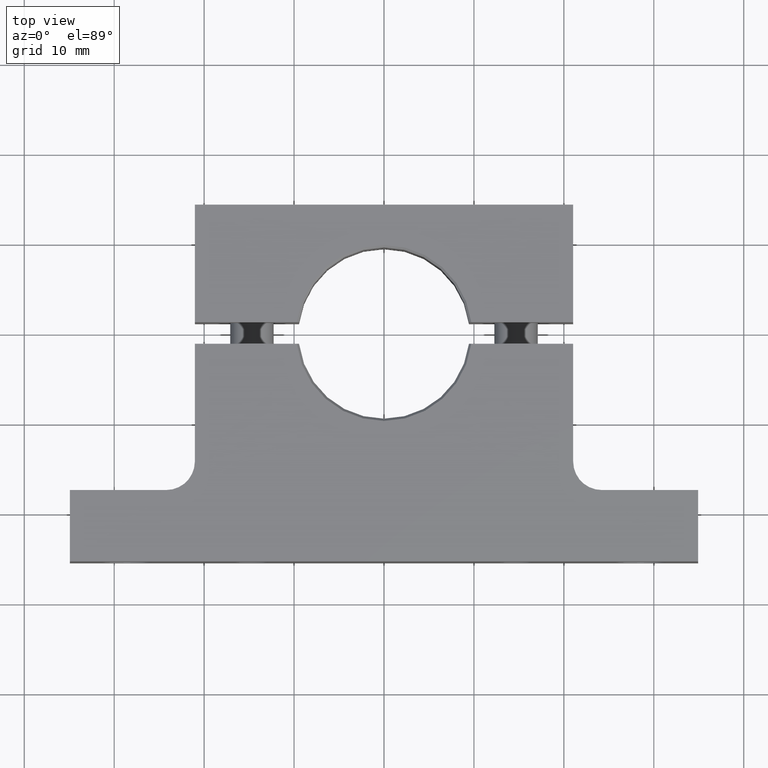
[diagram: clean part render]
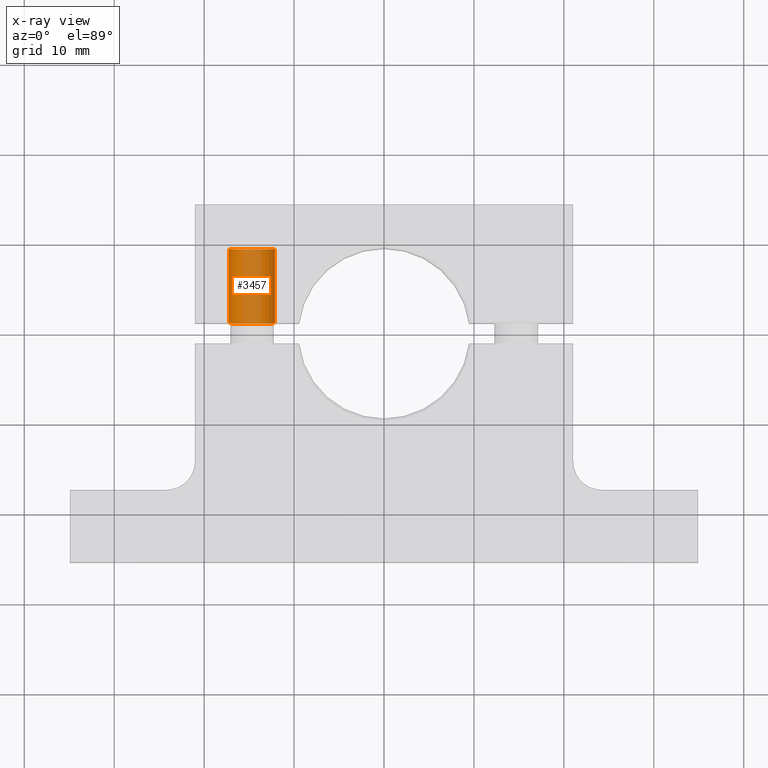
[diagram: x-ray — body ghosted, one internal face saturated and labeled with its STEP entity id]
A machine part, top view, then the same camera in x-ray: the body is ghosted and one INTERNAL B-rep face — a face not visible from any outside direction — is saturated and labeled: STEP entity #3457.
In plain terms, the highlighted cylindrical surface (edge-blend (fillet) strip) has radius 2.5527 mm, axis along (-0, 1, 0).
Its self-contained STEP definition (entity closure, byte-faithful):
#79 = AXIS2_PLACEMENT_3D ( 'NONE', #3492, #1226, #3893 ) ;
#146 = AXIS2_PLACEMENT_3D ( 'NONE', #3263, #577, #1002 ) ;
#222 = CARTESIAN_POINT ( 'NONE',  ( -0.6786250000000000300, -1.243136512323930000, 0.0000000000000000000 ) ) ;
#577 = DIRECTION ( 'NONE',  ( -2.111254999999999900E-016, 1.000000000000000000, 0.0000000000000000000 ) ) ;
#604 = ORIENTED_EDGE ( 'NONE', *, *, #4842, .F. ) ;
#610 = DIRECTION ( 'NONE',  ( -2.111254999999999600E-016, 1.000000000000000000, 0.0000000000000000000 ) ) ;
#864 = LINE ( 'NONE', #222, #4570 ) ;
#1002 = DIRECTION ( 'NONE',  ( -1.000000000000000000, 0.0000000000000000000, 0.0000000000000000000 ) ) ;
#1073 = EDGE_LOOP ( 'NONE', ( #4223, #2997, #4825, #604 ) ) ;
#1156 = EDGE_CURVE ( 'NONE', #4465, #4140, #2256, .T. ) ;
#1226 = DIRECTION ( 'NONE',  ( 2.111254999999999900E-016, -1.000000000000000000, -0.0000000000000000000 ) ) ;
#1257 = CYLINDRICAL_SURFACE ( 'NONE', #146, 0.1004999999999999900 ) ;
#1328 = CARTESIAN_POINT ( 'NONE',  ( -0.4776250000000000800, -1.243136512323930000, 1.230770033143090200E-017 ) ) ;
#1391 = CARTESIAN_POINT ( 'NONE',  ( -0.4776250000000003500, 0.04687500000000004900, 1.230770033143090300E-017 ) ) ;
#1406 = CARTESIAN_POINT ( 'NONE',  ( -0.5781250000000003300, 0.04687500000000002800, 0.0000000000000000000 ) ) ;
#1751 = FACE_OUTER_BOUND ( 'NONE', #1073, .T. ) ;
#1797 = DIRECTION ( 'NONE',  ( -1.000000000000000000, -1.698910443821059300E-016, 0.0000000000000000000 ) ) ;
#1856 = CIRCLE ( 'NONE', #3586, 0.1004999999999999900 ) ;
#2192 = CARTESIAN_POINT ( 'NONE',  ( -0.6786250000000004800, 0.3720000000000000000, 0.0000000000000000000 ) ) ;
#2256 = LINE ( 'NONE', #1328, #3265 ) ;
#2824 = DIRECTION ( 'NONE',  ( -2.111254999999999600E-016, 1.000000000000000000, 0.0000000000000000000 ) ) ;
#2997 = ORIENTED_EDGE ( 'NONE', *, *, #1156, .T. ) ;
#3019 = EDGE_CURVE ( 'NONE', #4465, #3618, #1856, .T. ) ;
#3186 = EDGE_CURVE ( 'NONE', #3986, #4140, #3745, .T. ) ;
#3263 = CARTESIAN_POINT ( 'NONE',  ( -0.5781250000000001100, -1.243136512323930000, 0.0000000000000000000 ) ) ;
#3265 = VECTOR ( 'NONE', #2824, 39.37007874015748100 ) ;
#3457 = ADVANCED_FACE ( 'NONE', ( #1751 ), #1257, .F. ) ;
#3492 = CARTESIAN_POINT ( 'NONE',  ( -0.5781250000000004400, 0.3720000000000000000, 0.0000000000000000000 ) ) ;
#3586 = AXIS2_PLACEMENT_3D ( 'NONE', #1406, #4068, #1797 ) ;
#3618 = VERTEX_POINT ( 'NONE', #4945 ) ;
#3745 = CIRCLE ( 'NONE', #79, 0.1005000000000000600 ) ;
#3893 = DIRECTION ( 'NONE',  ( -1.000000000000000000, 0.0000000000000000000, 0.0000000000000000000 ) ) ;
#3986 = VERTEX_POINT ( 'NONE', #2192 ) ;
#4068 = DIRECTION ( 'NONE',  ( -2.111254999999999900E-016, 1.000000000000000000, 0.0000000000000000000 ) ) ;
#4140 = VERTEX_POINT ( 'NONE', #4938 ) ;
#4223 = ORIENTED_EDGE ( 'NONE', *, *, #3019, .F. ) ;
#4465 = VERTEX_POINT ( 'NONE', #1391 ) ;
#4570 = VECTOR ( 'NONE', #610, 39.37007874015748100 ) ;
#4825 = ORIENTED_EDGE ( 'NONE', *, *, #3186, .F. ) ;
#4842 = EDGE_CURVE ( 'NONE', #3618, #3986, #864, .T. ) ;
#4938 = CARTESIAN_POINT ( 'NONE',  ( -0.4776250000000004100, 0.3720000000000000000, 1.230770033143090300E-017 ) ) ;
#4945 = CARTESIAN_POINT ( 'NONE',  ( -0.6786250000000003700, 0.04687500000000001400, 0.0000000000000000000 ) ) ;